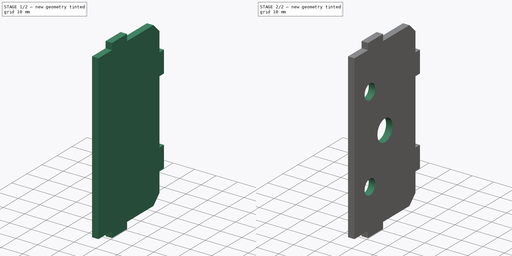
[diagram: build sequence overview — one tinted view per stage of 2, left to right]
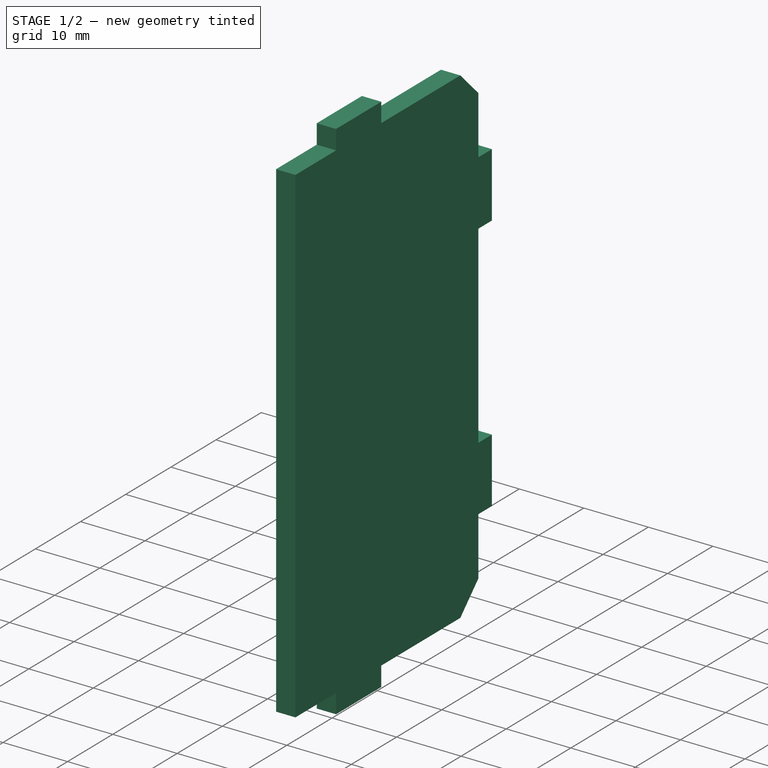
[diagram: stage 1 of 2 — iso view after this stage's code; geometry added in this stage tinted green]
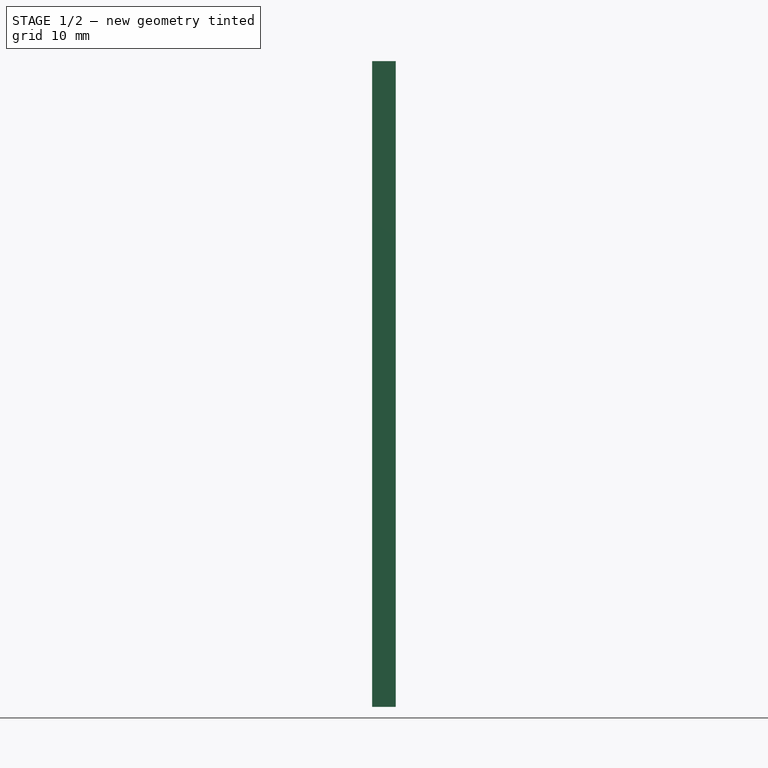
[diagram: stage 1 of 2 — front view after this stage's code; geometry added in this stage tinted green]
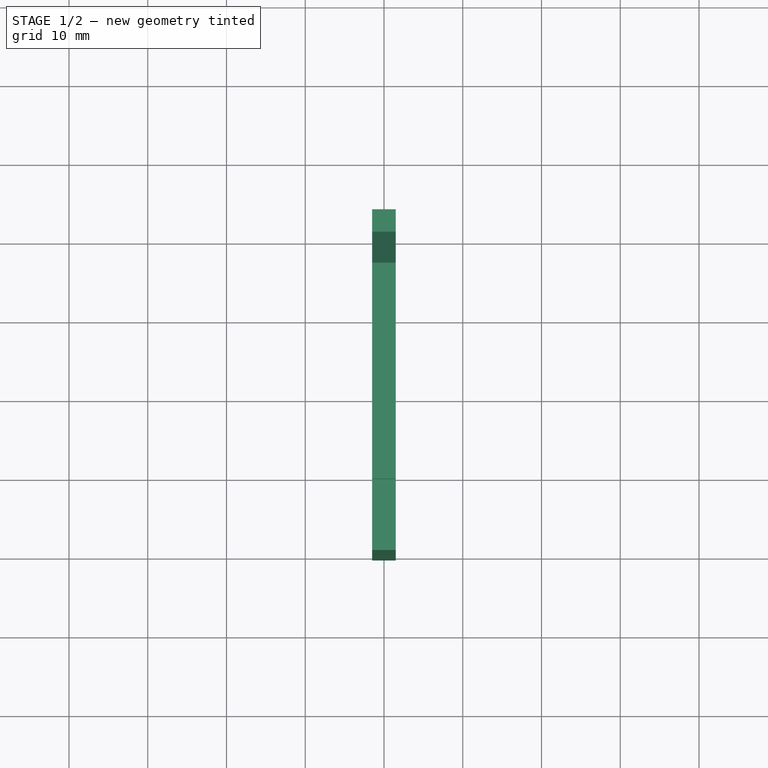
[diagram: stage 1 of 2 — top view after this stage's code; geometry added in this stage tinted green]
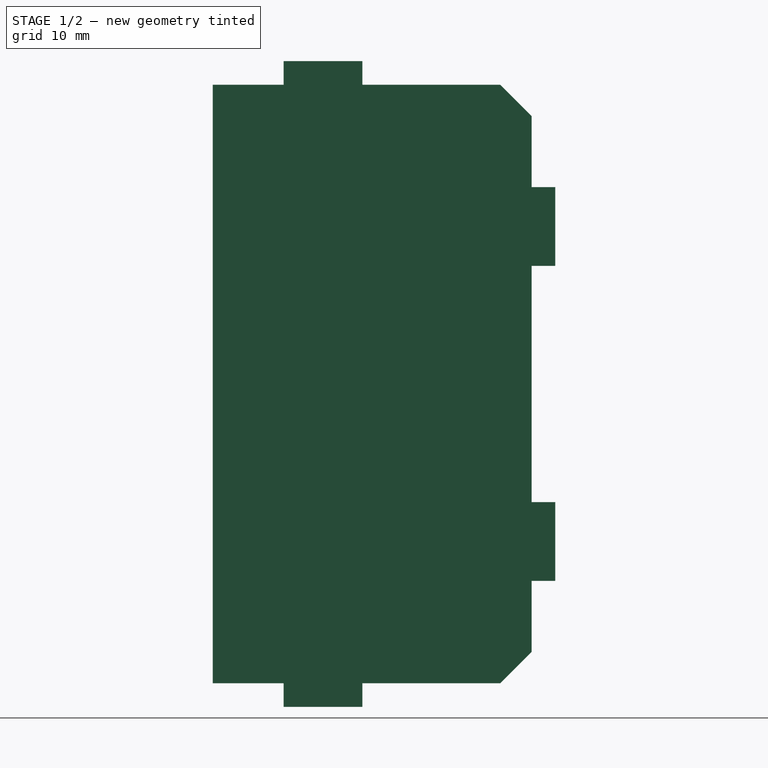
[diagram: stage 1 of 2 — right view after this stage's code; geometry added in this stage tinted green]
FCSTD DOCUMENT  (FreeCAD 0.21R33771 (Git))
Label: SpacerFlangeGusset
License: Creative Commons Attribution-ShareAlike 4.0
LicenseURL: https://creativecommons.org/licenses/by-sa/4.0/
objects: Sketcher::SketchObject×2, PartDesign::Pad×1, PartDesign::Chamfer×1, PartDesign::Pocket×1, PartDesign::Body×1
note: 9 computed .brp shape members not serialized (recipe doc carries the construction recipe); baked Part::Feature solids carry a one-line shape summary decoded from their .brp

FEATURE [Sketcher::SketchObject] Sketch
  FullyConstrained = true
  MapMode = 5
  Placement = pos=(0,0,0) rot=(0.57735,0.57735,0.57735;2.0944rad)
  Support = -> [YZ_Plane]
  sketch-geometry (38):
    g0: LineSegment StartX=20.25 StartY=-38 StartZ=0 EndX=20.25 EndY=38 EndZ=0
    g1: LineSegment StartX=20.25 StartY=38 StartZ=0 EndX=-20.25 EndY=38 EndZ=0
    g2: LineSegment StartX=-20.25 StartY=38 StartZ=0 EndX=-20.25 EndY=-38 EndZ=0
    g3: LineSegment StartX=-20.25 StartY=-38 StartZ=0 EndX=20.25 EndY=-38 EndZ=0
    g4: GeomPoint X=0 Y=0 Z=0
    g5: GeomPoint X=173.75 Y=0 Z=0
    g6: GeomPoint X=21.75 Y=0 Z=0
    g7: GeomPoint X=-26.25 Y=0 Z=0
    g8: Circle CenterX=21.75 CenterY=0 CenterZ=0 NormalX=0 NormalY=0 NormalZ=1 AngleXU=0 Radius=1.5
    g9: LineSegment StartX=21.75 StartY=0 StartZ=0 EndX=20.25 EndY=0 EndZ=0
    g10: LineSegment StartX=-11.25 StartY=41 StartZ=0 EndX=-11.25 EndY=38 EndZ=0
    g11: LineSegment StartX=-11.25 StartY=38 StartZ=0 EndX=-1.25 EndY=38 EndZ=0
    g12: LineSegment StartX=-1.25 StartY=38 StartZ=0 EndX=-1.25 EndY=41 EndZ=0
    g13: LineSegment StartX=-1.25 StartY=41 StartZ=0 EndX=-11.25 EndY=41 EndZ=0
    g14: GeomPoint X=-6.25 Y=39.5 Z=0
    g15: LineSegment StartX=-11.25 StartY=-38 StartZ=0 EndX=-11.25 EndY=-41 EndZ=0
    g16: LineSegment StartX=-11.25 StartY=-41 StartZ=0 EndX=-1.25 EndY=-41 EndZ=0
    g17: LineSegment StartX=-1.25 StartY=-41 StartZ=0 EndX=-1.25 EndY=-38 EndZ=0
    g18: LineSegment StartX=-1.25 StartY=-38 StartZ=0 EndX=-11.25 EndY=-38 EndZ=0
    g19: GeomPoint X=-6.25 Y=-39.5 Z=0
    g20: LineSegment StartX=20.25 StartY=-15 StartZ=0 EndX=20.25 EndY=-25 EndZ=0
    g21: LineSegment StartX=20.25 StartY=-25 StartZ=0 EndX=23.25 EndY=-25 EndZ=0
    g22: LineSegment StartX=23.25 StartY=-25 StartZ=0 EndX=23.25 EndY=-15 EndZ=0
    g23: LineSegment StartX=23.25 StartY=-15 StartZ=0 EndX=20.25 EndY=-15 EndZ=0
    g24: GeomPoint X=21.75 Y=-20 Z=0
    g25: LineSegment StartX=20.25 StartY=25 StartZ=0 EndX=20.25 EndY=15 EndZ=0
    g26: LineSegment StartX=20.25 StartY=15 StartZ=0 EndX=23.25 EndY=15 EndZ=0
    g27: LineSegment StartX=23.25 StartY=15 StartZ=0 EndX=23.25 EndY=25 EndZ=0
    g28: LineSegment StartX=23.25 StartY=25 StartZ=0 EndX=20.25 EndY=25 EndZ=0
    g29: GeomPoint X=21.75 Y=20 Z=0
    g30: LineSegment StartX=-6.25 StartY=39.5 StartZ=0 EndX=-6.25 EndY=-39.5 EndZ=0
    g31: LineSegment StartX=-20.25 StartY=38 StartZ=0 EndX=-11.25 EndY=38 EndZ=0
    g32: LineSegment StartX=-1.25 StartY=38 StartZ=0 EndX=20.25 EndY=38 EndZ=0
    g33: LineSegment StartX=20.25 StartY=38 StartZ=0 EndX=20.25 EndY=25 EndZ=0
    g34: LineSegment StartX=20.25 StartY=15 StartZ=0 EndX=20.25 EndY=-15 EndZ=0
    g35: LineSegment StartX=20.25 StartY=-25 StartZ=0 EndX=20.25 EndY=-38 EndZ=0
    g36: LineSegment StartX=20.25 StartY=-38 StartZ=0 EndX=-1.25 EndY=-38 EndZ=0
    g37: LineSegment StartX=-11.25 StartY=-38 StartZ=0 EndX=-20.25 EndY=-38 EndZ=0
  constraints (91):
    c: Coincident(g0,g1)
    c: Coincident(g1,g2)
    c: Coincident(g2,g3)
    c: Coincident(g3,g0)
    c: Horizontal(g1)
    c: Horizontal(g3)
    c: Vertical(g0)
    c: Vertical(g2)
    c: Symmetric(g1,g0,g4)
    c: Coincident(g4,g-1)
    c: PointOnObject(g5,g-1)
    c: PointOnObject(g6,g-1)
    c: PointOnObject(g7,g-1)
    c: DistanceX(g6,g5) = 152
    c: Coincident(g8,g6)
    c: Diameter(g8) = 3
    c: Coincident(g9,g6)
    c: PointOnObject(g9,g8)
    c: Horizontal(g9)
    c: PointOnObject(g9,g0)
    c: DistanceX(g7,g5) = 200
    c: DistanceX(g7,g2) = 6
    c: Coincident(g10,g11)
    c: Coincident(g11,g12)
    c: Coincident(g12,g13)
    c: Coincident(g13,g10)
    c: Horizontal(g11)
    c: Horizontal(g13)
    c: Vertical(g10)
    c: Vertical(g12)
    c: Symmetric(g11,g10,g14)
    c: Coincident(g15,g16)
    c: Coincident(g16,g17)
    c: Coincident(g17,g18)
    c: Coincident(g18,g15)
    c: Horizontal(g16)
    c: Horizontal(g18)
    c: Vertical(g15)
    c: Vertical(g17)
    c: Symmetric(g16,g15,g19)
    c: Coincident(g20,g21)
    c: Coincident(g21,g22)
    c: Coincident(g22,g23)
    c: Coincident(g23,g20)
    c: Horizontal(g21)
    c: Horizontal(g23)
    c: Vertical(g20)
    c: Vertical(g22)
    c: Symmetric(g21,g20,g24)
    c: Coincident(g25,g26)
    c: Coincident(g26,g27)
    c: Coincident(g27,g28)
    c: Coincident(g28,g25)
    c: Horizontal(g26)
    c: Horizontal(g28)
    c: Vertical(g25)
    c: Vertical(g27)
    c: Symmetric(g26,g25,g29)
    c: Distance(g13) = 10
    c: Equal(g13,g18)
    c: Equal(g13,g27)
    c: Equal(g13,g22)
    c: DistanceY(g10,g10) = 3
    c: Equal(g12,g26)
    c: Equal(g12,g17)
    c: Equal(g12,g21)
    c: Coincident(g30,g14)
    c: Coincident(g30,g19)
    c: Vertical(g30)
    c: DistanceX(g10,g5) = 185
    c: PointOnObject(g10,g1)
    c: PointOnObject(g15,g3)
    c: DistanceY(g2,g4) = 38
    c: PointOnObject(g20,g0)
    c: PointOnObject(g25,g0)
    c: DistanceY(g4,g29) = 20
    c: DistanceY(g24,g4) = 20
    c: Coincident(g31,g2)
    c: Coincident(g31,g10)
    c: Coincident(g32,g12)
    c: Coincident(g32,g0)
    c: Coincident(g33,g32)
    c: Coincident(g33,g28)
    c: Coincident(g34,g26)
    c: Coincident(g34,g23)
    c: Coincident(g35,g21)
    c: Coincident(g36,g35)
    c: Coincident(g36,g17)
    c: Coincident(g35,g0)
    c: Coincident(g37,g15)
    c: Coincident(g37,g2)
FEATURE [PartDesign::Pad] Pad
  Direction = (1,-2e-16,3e-16)
  Length = 3
  Length2 = 10
  Midplane = true
  Placement = pos=(0,0,0) rot=(0.57735,0.57735,0.57735;2.0944rad)
  Profile = -> Sketch
  ReferenceAxis = -> Sketch [N_Axis]
  Type = 0
FEATURE [PartDesign::Chamfer] Chamfer
  Angle = 45
  Base = -> Pad [Edge56,Edge29]
  BaseFeature = -> Pad
  ChamferType = 0
  FlipDirection = false
  Placement = pos=(0,0,0) rot=(0.57735,0.57735,0.57735;2.0944rad)
  Size = 4
  Size2 = 1
  SupportTransform = false
  UseAllEdges = false
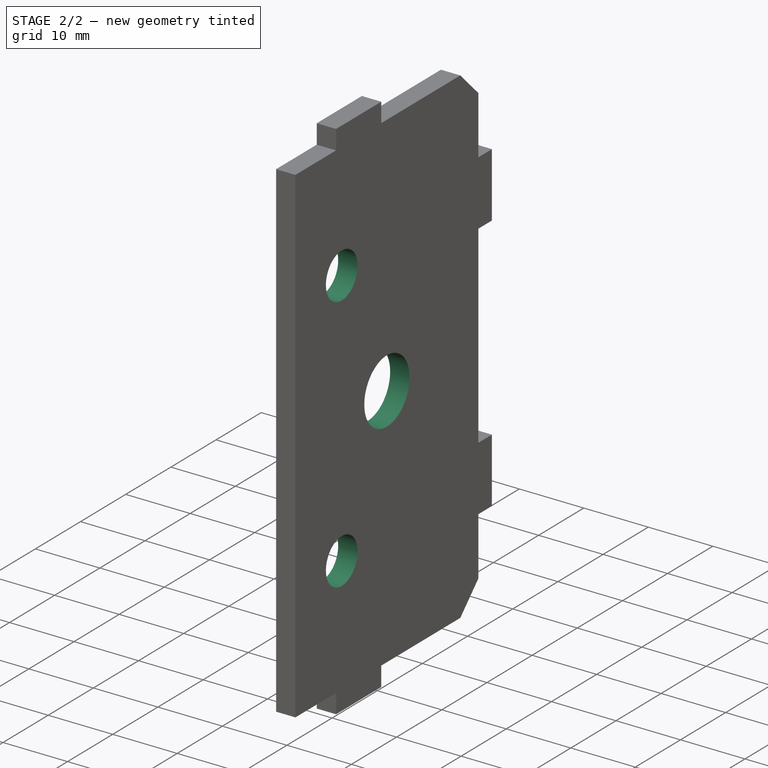
[diagram: stage 2 of 2 — iso view after this stage's code; geometry added in this stage tinted green]
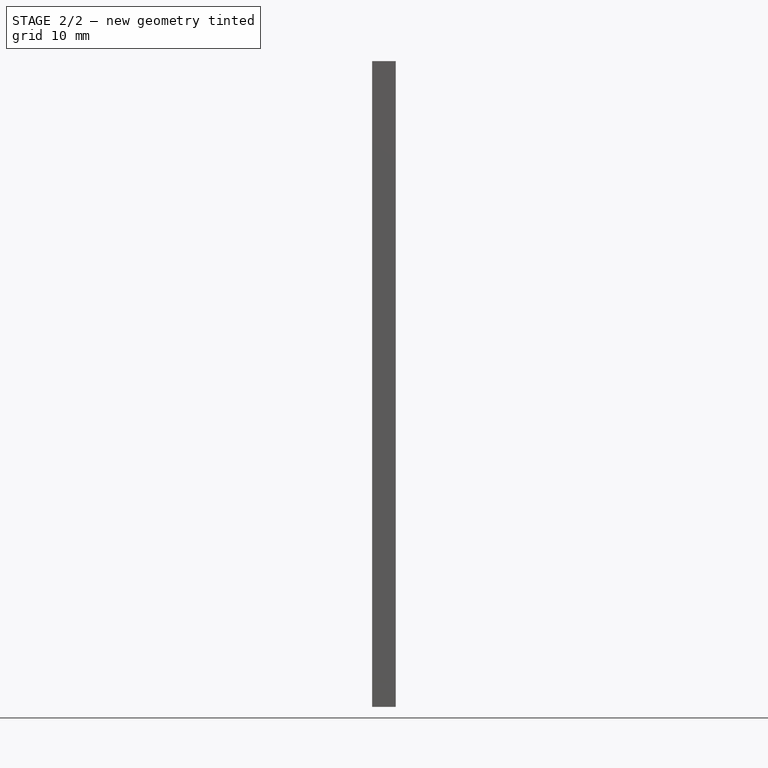
[diagram: stage 2 of 2 — front view after this stage's code; geometry added in this stage tinted green]
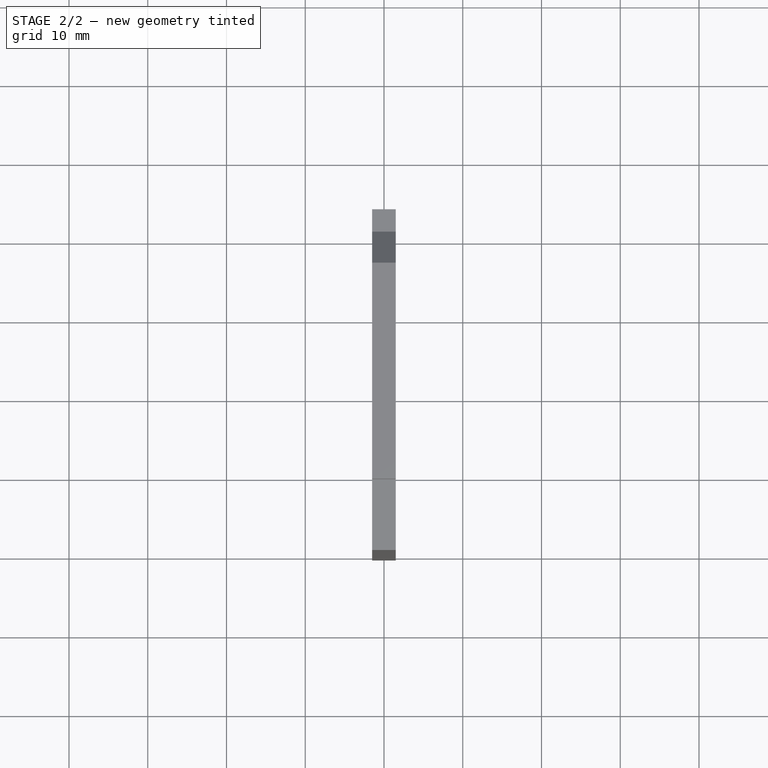
[diagram: stage 2 of 2 — top view after this stage's code; geometry added in this stage tinted green]
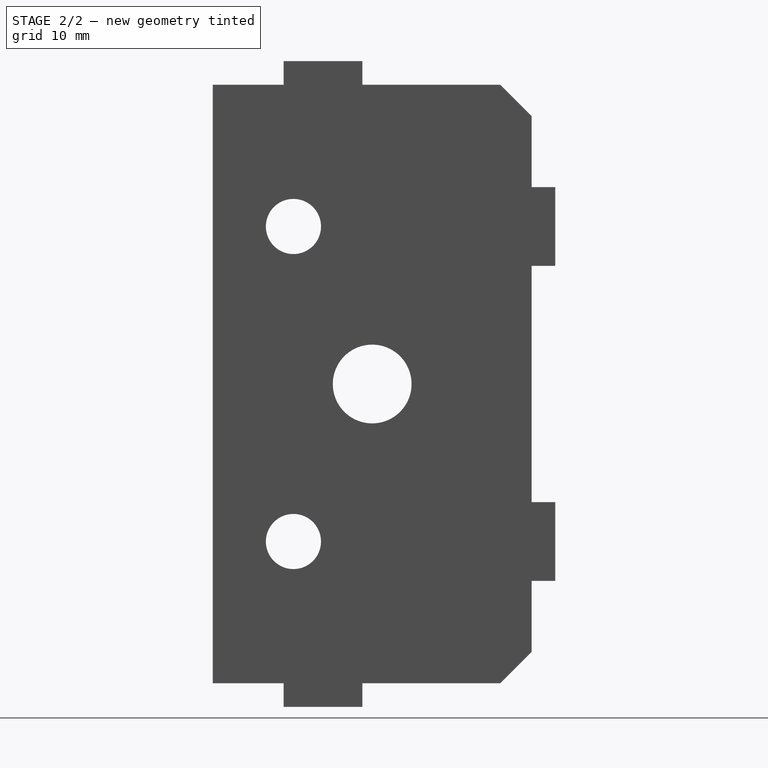
[diagram: stage 2 of 2 — right view after this stage's code; geometry added in this stage tinted green]
FEATURE [Sketcher::SketchObject] Sketch001
  FullyConstrained = true
  MapMode = 5
  Placement = pos=(0,0,0) rot=(0.57735,0.57735,0.57735;2.0944rad)
  Support = -> [YZ_Plane]
  sketch-geometry (4):
    g0: Circle CenterX=0 CenterY=0 CenterZ=0 NormalX=0 NormalY=0 NormalZ=1 AngleXU=0 Radius=5
    g1: Circle CenterX=-10 CenterY=20 CenterZ=0 NormalX=0 NormalY=0 NormalZ=1 AngleXU=0 Radius=3.5
    g2: Circle CenterX=-10 CenterY=-20 CenterZ=0 NormalX=0 NormalY=0 NormalZ=1 AngleXU=0 Radius=3.5
    g3: LineSegment StartX=-10 StartY=20 StartZ=0 EndX=-10 EndY=-20 EndZ=0
  constraints (10):
    c: Coincident(g0,g-1)
    c: Diameter(g0) = 10
    c: Coincident(g3,g1)
    c: Coincident(g3,g2)
    c: Vertical(g3)
    c: Diameter(g1) = 7
    c: Equal(g1,g2)
    c: DistanceY(g3,g3) = 40
    c: DistanceY(g2,g0) = 20
    c: DistanceX(g1,g0) = 10
FEATURE [PartDesign::Pocket] Pocket
  BaseFeature = -> Chamfer
  Direction = (-1,2e-16,-3e-16)
  Length = 5
  Length2 = 5
  Midplane = true
  Placement = pos=(0,0,0) rot=(0.57735,0.57735,0.57735;2.0944rad)
  Profile = -> Sketch001
  ReferenceAxis = -> Sketch001 [N_Axis]
  Type = 1
FEATURE [PartDesign::Body] Body
  Group = -> [Sketch,Pad,Chamfer,Sketch001,Pocket]
  Origin = -> Origin
  Tip = -> Pocket
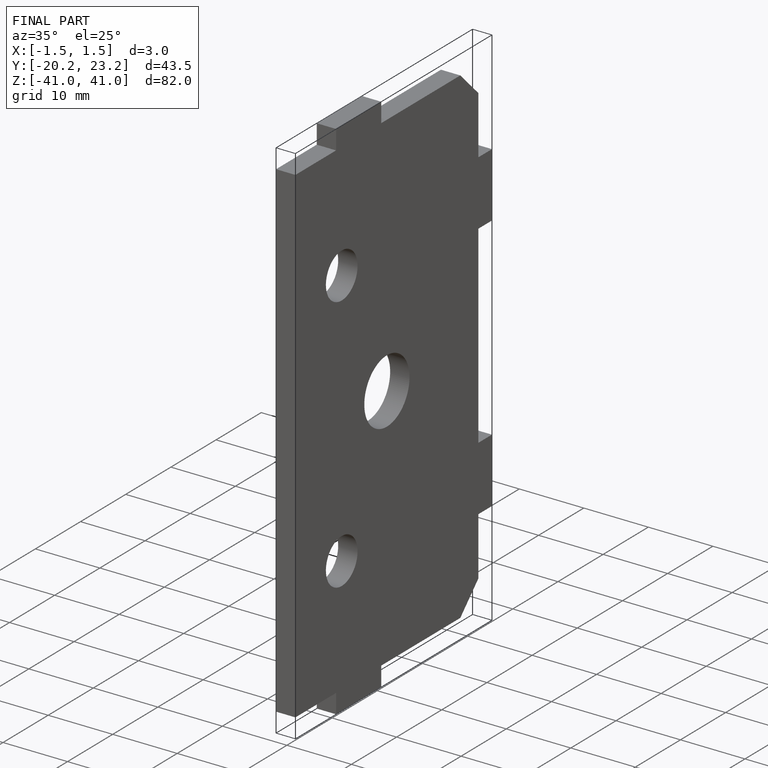
[diagram: finished part — iso view with bounding-box wireframe]
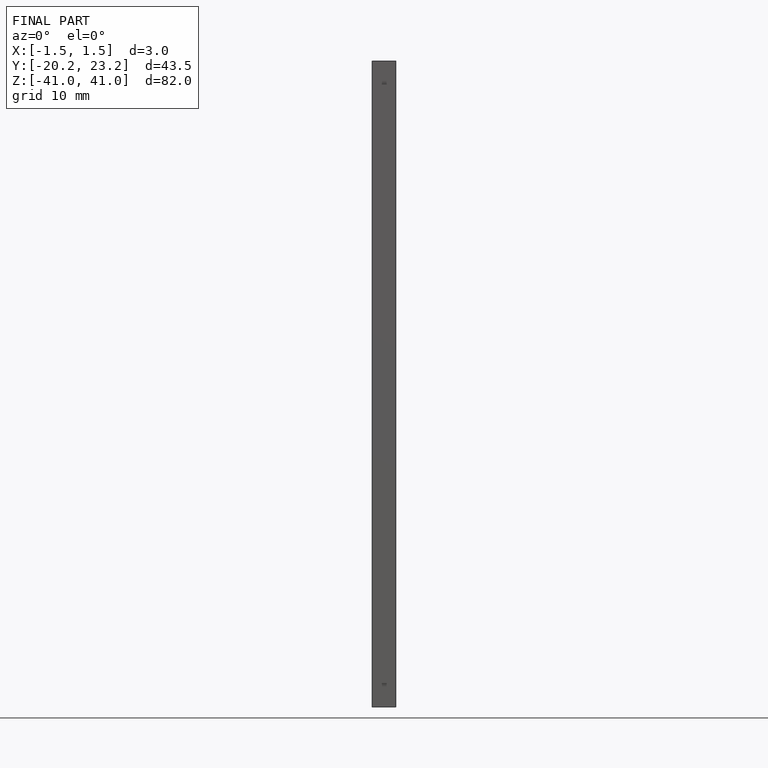
[diagram: finished part — front view with bounding-box wireframe]
